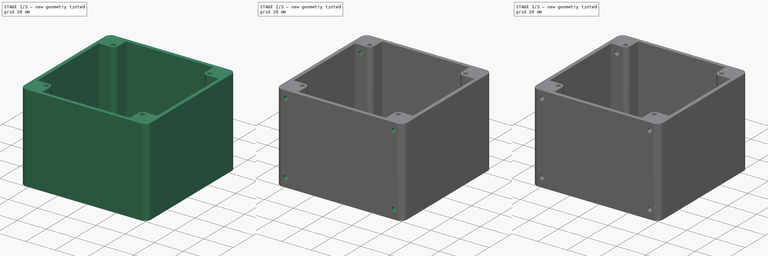
[diagram: build sequence overview — one tinted view per stage of 3, left to right]
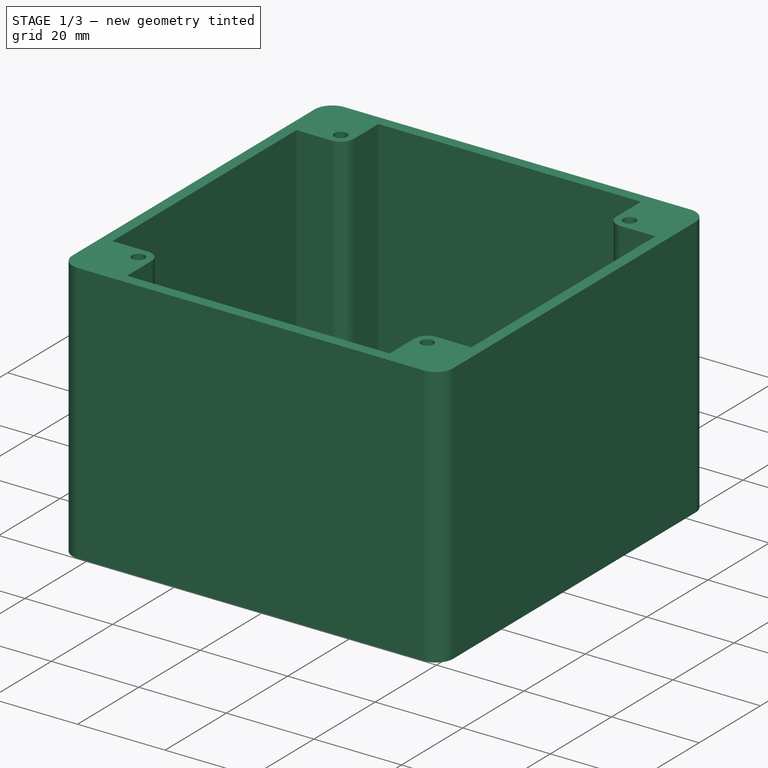
[diagram: stage 1 of 3 — iso view after this stage's code; geometry added in this stage tinted green]
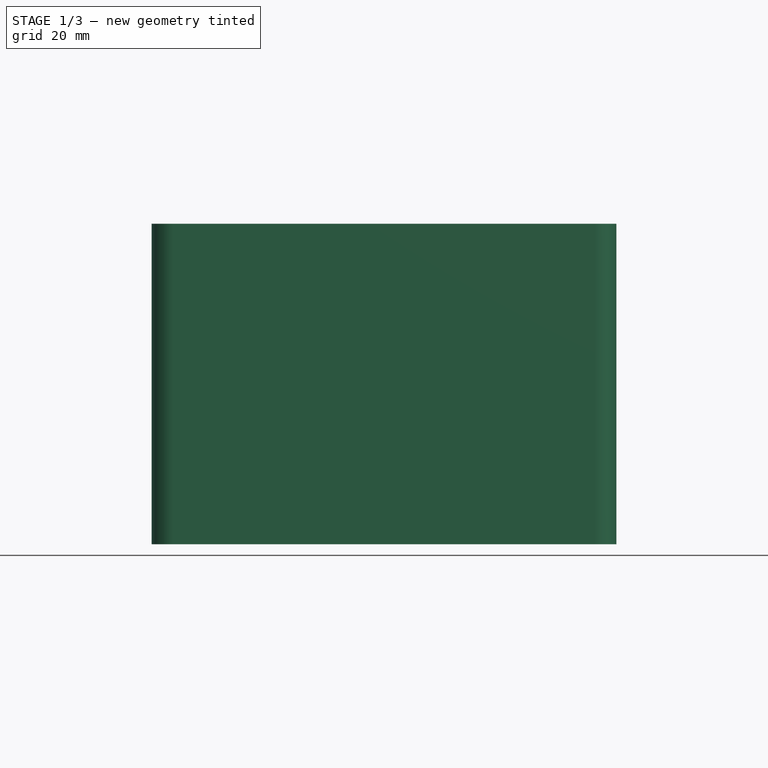
[diagram: stage 1 of 3 — front view after this stage's code; geometry added in this stage tinted green]
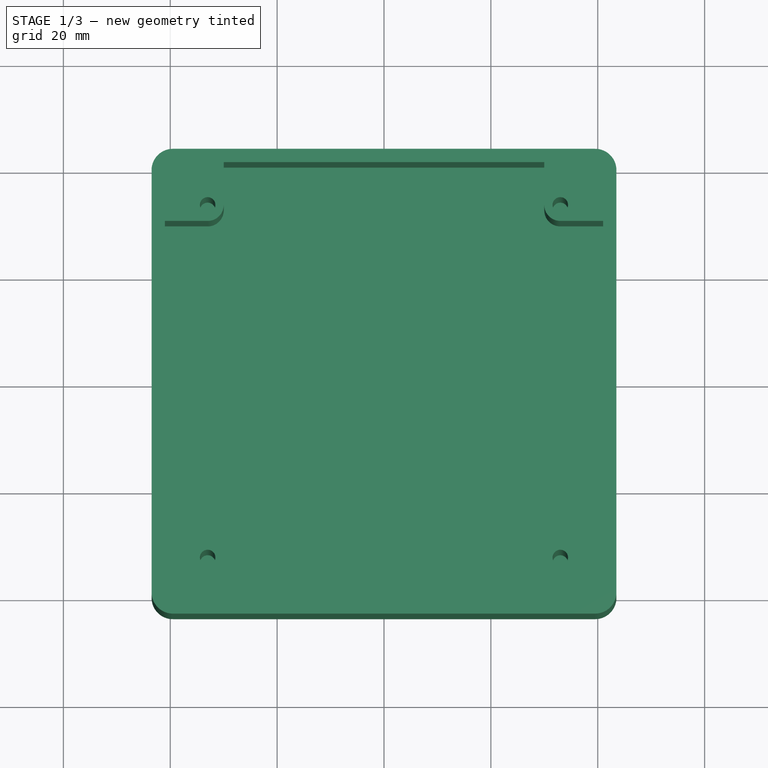
[diagram: stage 1 of 3 — top view after this stage's code; geometry added in this stage tinted green]
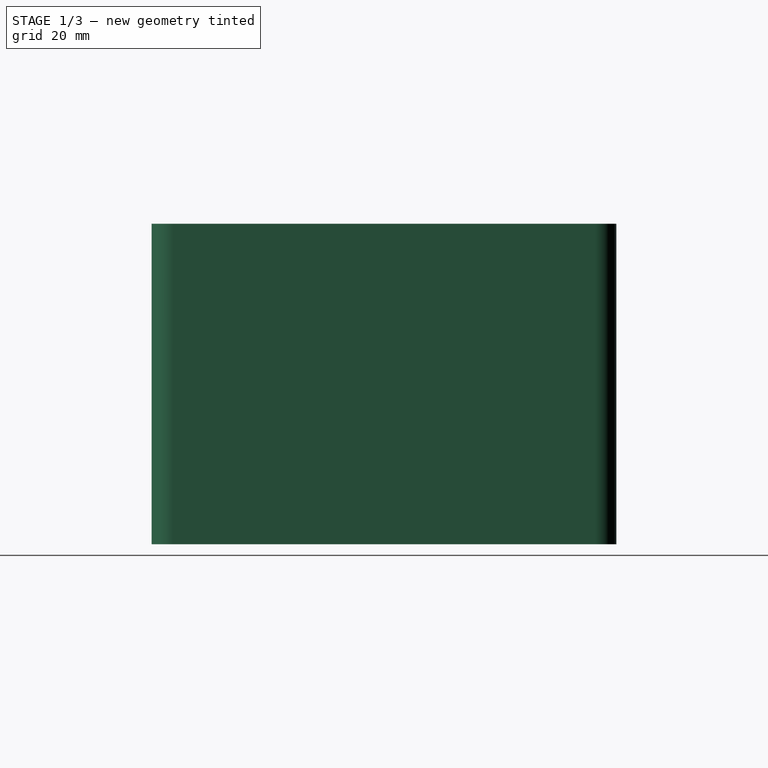
[diagram: stage 1 of 3 — right view after this stage's code; geometry added in this stage tinted green]
FCSTD DOCUMENT  (FreeCAD 0.18R4 (GitTag))
Label: electrical_box_fancontrol
License: All rights reserved
LicenseURL: http://en.wikipedia.org/wiki/All_rights_reserved
objects: Sketcher::SketchObject×4, PartDesign::Pocket×3, PartDesign::Pad×1, PartDesign::PolarPattern×1, PartDesign::Chamfer×1, PartDesign::Body×1
note: 15 computed .brp shape members not serialized (recipe doc carries the construction recipe); baked Part::Feature solids carry a one-line shape summary decoded from their .brp

FEATURE [Sketcher::SketchObject] Sketch
  MapMode = 5
  Support = -> [XY_Plane]
  sketch-geometry (11):
    g0: LineSegment StartX=-39.5 StartY=43.5 StartZ=0 EndX=39.5 EndY=43.5 EndZ=0
    g1: LineSegment StartX=43.5 StartY=39.5 StartZ=0 EndX=43.5 EndY=-39.5 EndZ=0
    g2: LineSegment StartX=39.5 StartY=-43.5 StartZ=0 EndX=-39.5 EndY=-43.5 EndZ=0
    g3: LineSegment StartX=-43.5 StartY=-39.5 StartZ=0 EndX=-43.5 EndY=39.5 EndZ=0
    g4: ArcOfCircle CenterX=-39.5 CenterY=39.5 CenterZ=0 NormalX=0 NormalY=0 NormalZ=1 AngleXU=0 Radius=4 StartAngle=1.5708 EndAngle=3.14159
    g5: ArcOfCircle CenterX=39.5 CenterY=39.5 CenterZ=0 NormalX=0 NormalY=0 NormalZ=1 AngleXU=0 Radius=4 StartAngle=9e-16 EndAngle=1.5708
    g6: ArcOfCircle CenterX=39.5 CenterY=-39.5 CenterZ=0 NormalX=0 NormalY=0 NormalZ=1 AngleXU=0 Radius=4 StartAngle=4.71239 EndAngle=6.28319
    g7: ArcOfCircle CenterX=-39.5 CenterY=-39.5 CenterZ=0 NormalX=0 NormalY=0 NormalZ=1 AngleXU=0 Radius=4 StartAngle=3.14159 EndAngle=4.71239
    g8: LineSegment [constr] StartX=-39.5 StartY=39.5 StartZ=0 EndX=0 EndY=0 EndZ=0
    g9: LineSegment [constr] StartX=0 StartY=0 StartZ=0 EndX=39.5 EndY=39.5 EndZ=0
    g10: LineSegment [constr] StartX=0 StartY=0 StartZ=0 EndX=-39.5 EndY=-39.5 EndZ=0
  constraints (26):
    c: Horizontal(g0)
    c: Horizontal(g2)
    c: Vertical(g1)
    c: Vertical(g3)
    c: Tangent(g3,g4) = 1.5708
    c: Tangent(g0,g4) = 1.5708
    c: Tangent(g0,g5) = 1.5708
    c: Tangent(g1,g5) = 1.5708
    c: Tangent(g1,g6) = 1.5708
    c: Tangent(g2,g6) = 1.5708
    c: Tangent(g2,g7) = 1.5708
    c: Tangent(g3,g7) = 1.5708
    c: Equal(g7,g4)
    c: Equal(g4,g5)
    c: Equal(g5,g6)
    c: Radius(g5) = 4
    c: Equal(g3,g0)
    c: DistanceX(g3,g1) = 87
    c: Coincident(g8,g4)
    c: Coincident(g8,g-1)
    c: Coincident(g8,g9)
    c: Coincident(g9,g5)
    c: Coincident(g-1,g10)
    c: Coincident(g10,g7)
    c: Equal(g10,g8)
    c: Equal(g8,g9)
FEATURE [PartDesign::Pad] Pad
  Length = 60
  Length2 = 100
  Profile = -> Sketch
  Type = 0
FEATURE [Sketcher::SketchObject] Sketch001
  MapMode = 5
  Placement = pos=(0,0,60) rot=(0,0,1;0rad)
  Support = -> [Pad]
  sketch-geometry (25):
    g0: LineSegment [constr] StartX=-33 StartY=33 StartZ=0 EndX=-33 EndY=-33 EndZ=0
    g1: LineSegment [constr] StartX=-33 StartY=-33 StartZ=0 EndX=33 EndY=-33 EndZ=0
    g2: LineSegment [constr] StartX=33 StartY=-33 StartZ=0 EndX=33 EndY=33 EndZ=0
    g3: LineSegment [constr] StartX=33 StartY=33 StartZ=0 EndX=-33 EndY=33 EndZ=0
    g4: Circle [constr] CenterX=0 CenterY=0 CenterZ=0 NormalX=0 NormalY=0 NormalZ=1 AngleXU=0 Radius=46.669
    g5: Circle CenterX=-33 CenterY=33 CenterZ=0 NormalX=0 NormalY=0 NormalZ=1 AngleXU=0 Radius=1.45
    g6: Circle CenterX=33 CenterY=33 CenterZ=0 NormalX=0 NormalY=0 NormalZ=1 AngleXU=0 Radius=1.45
    g7: Circle CenterX=33 CenterY=-33 CenterZ=0 NormalX=0 NormalY=0 NormalZ=1 AngleXU=0 Radius=1.45
    g8: Circle CenterX=-33 CenterY=-33 CenterZ=0 NormalX=0 NormalY=0 NormalZ=1 AngleXU=0 Radius=1.45
    g9: LineSegment StartX=-30 StartY=33 StartZ=0 EndX=-30 EndY=41 EndZ=0
    g10: LineSegment StartX=-30 StartY=41 StartZ=0 EndX=30 EndY=41 EndZ=0
    g11: LineSegment StartX=30 StartY=41 StartZ=0 EndX=30 EndY=33 EndZ=0
    g12: ArcOfCircle CenterX=33 CenterY=33 CenterZ=0 NormalX=0 NormalY=0 NormalZ=1 AngleXU=0 Radius=3 StartAngle=3.14159 EndAngle=4.71239
    g13: LineSegment StartX=33 StartY=30 StartZ=0 EndX=41 EndY=30 EndZ=0
    g14: LineSegment StartX=41 StartY=30 StartZ=0 EndX=41 EndY=-30 EndZ=0
    g15: LineSegment StartX=41 StartY=-30 StartZ=0 EndX=33 EndY=-30 EndZ=0
    g16: LineSegment StartX=30 StartY=-33 StartZ=0 EndX=30 EndY=-41 EndZ=0
    g17: LineSegment StartX=30 StartY=-41 StartZ=0 EndX=-30 EndY=-41 EndZ=0
    g18: LineSegment StartX=-30 StartY=-41 StartZ=0 EndX=-30 EndY=-33 EndZ=0
    g19: LineSegment StartX=-33 StartY=-30 StartZ=0 EndX=-41 EndY=-30 EndZ=0
    g20: LineSegment StartX=-41 StartY=-30 StartZ=0 EndX=-41 EndY=30 EndZ=0
    g21: LineSegment StartX=-41 StartY=30 StartZ=0 EndX=-33 EndY=30 EndZ=0
    g22: ArcOfCircle CenterX=-33 CenterY=33 CenterZ=0 NormalX=0 NormalY=0 NormalZ=1 AngleXU=0 Radius=3 StartAngle=4.71239 EndAngle=6.28319
    g23: ArcOfCircle CenterX=-33 CenterY=-33 CenterZ=0 NormalX=0 NormalY=0 NormalZ=1 AngleXU=0 Radius=3 StartAngle=1.1e-15 EndAngle=1.5708
    g24: ArcOfCircle CenterX=33 CenterY=-33 CenterZ=0 NormalX=0 NormalY=0 NormalZ=1 AngleXU=0 Radius=3 StartAngle=1.5708 EndAngle=3.14159
  constraints (69):
    c: Coincident(g0,g1)
    c: Coincident(g1,g2)
    c: Coincident(g2,g3)
    c: Coincident(g3,g0)
    c: Equal(g0,g1)
    c: Equal(g0,g2)
    c: Equal(g0,g3)
    c: PointOnObject(g0,g4)
    c: PointOnObject(g1,g4)
    c: PointOnObject(g2,g4)
    c: PointOnObject(g3,g4)
    c: Coincident(g4,g-1)
    c: Horizontal(g3)
    c: DistanceX(g3,g3) = 66
    c: Coincident(g5,g0)
    c: Coincident(g6,g2)
    c: Coincident(g7,g1)
    c: Coincident(g8,g0)
    c: Equal(g5,g8)
    c: Equal(g8,g6)
    c: Equal(g6,g7)
    c: Diameter(g6) = 2.9
    c: PointOnObject(g9,g3)
    c: Vertical(g9)
    c: Coincident(g9,g10)
    c: Horizontal(g10)
    c: Coincident(g10,g11)
    c: PointOnObject(g11,g3)
    c: Vertical(g11)
    c: Tangent(g12,g11) = -1.5708
    c: PointOnObject(g12,g2)
    c: Tangent(g12,g13) = -1.5708
    c: Horizontal(g13)
    c: Coincident(g13,g14)
    c: Vertical(g14)
    c: Coincident(g14,g15)
    c: PointOnObject(g15,g2)
    c: Horizontal(g15)
    c: PointOnObject(g16,g1)
    c: Vertical(g16)
    c: Coincident(g16,g17)
    c: Horizontal(g17)
    c: Coincident(g17,g18)
    c: PointOnObject(g18,g1)
    c: Vertical(g18)
    c: PointOnObject(g19,g0)
    c: Horizontal(g19)
    c: Coincident(g19,g20)
    c: Vertical(g20)
    c: Coincident(g20,g21)
    c: PointOnObject(g21,g0)
    c: Horizontal(g21)
    c: Coincident(g22,g5)
    c: Coincident(g22,g21)
    c: Coincident(g22,g9)
    c: Coincident(g23,g8)
    c: Coincident(g23,g19)
    c: Coincident(g23,g18)
    c: Coincident(g24,g7)
    c: Coincident(g24,g16)
    c: Coincident(g24,g15)
    c: Equal(g22,g12)
    c: Equal(g12,g24)
    c: Equal(g24,g23)
    c: Equal(g9,g21)
    c: Equal(g21,g15)
    c: Equal(g15,g16)
    c: DistanceY(g9,g9) = 8
    c: DistanceX(g10,g10) = 60
FEATURE [PartDesign::Pocket] Pocket
  BaseFeature = -> Pad
  Length = 59
  Length2 = 100
  Profile = -> Sketch001
  Type = 0
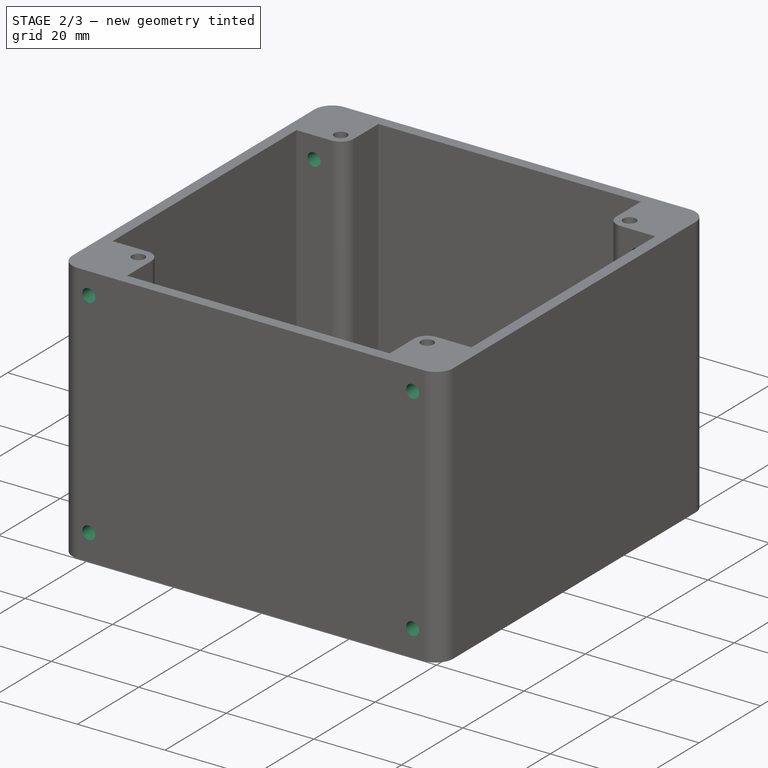
[diagram: stage 2 of 3 — iso view after this stage's code; geometry added in this stage tinted green]
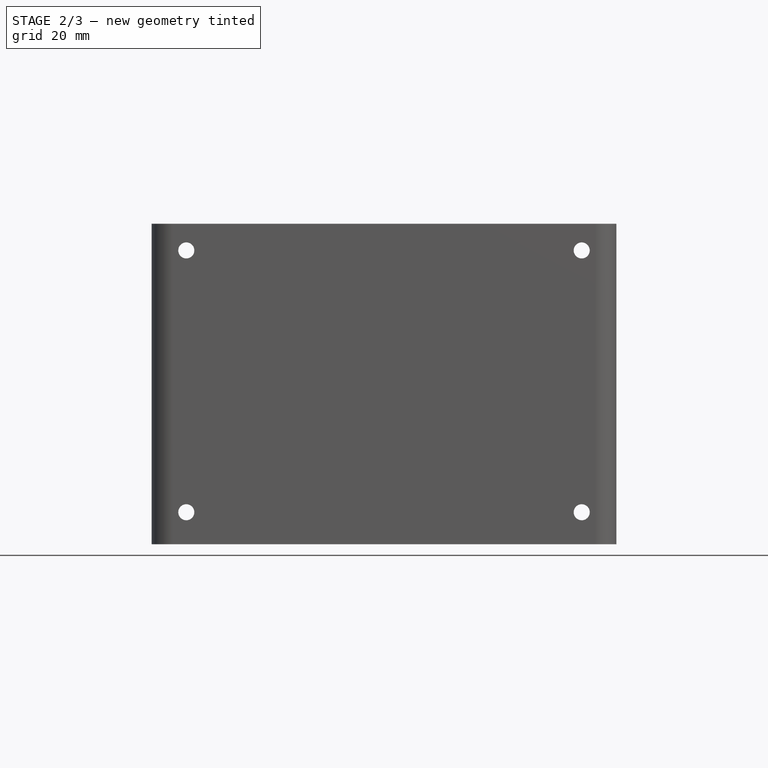
[diagram: stage 2 of 3 — front view after this stage's code; geometry added in this stage tinted green]
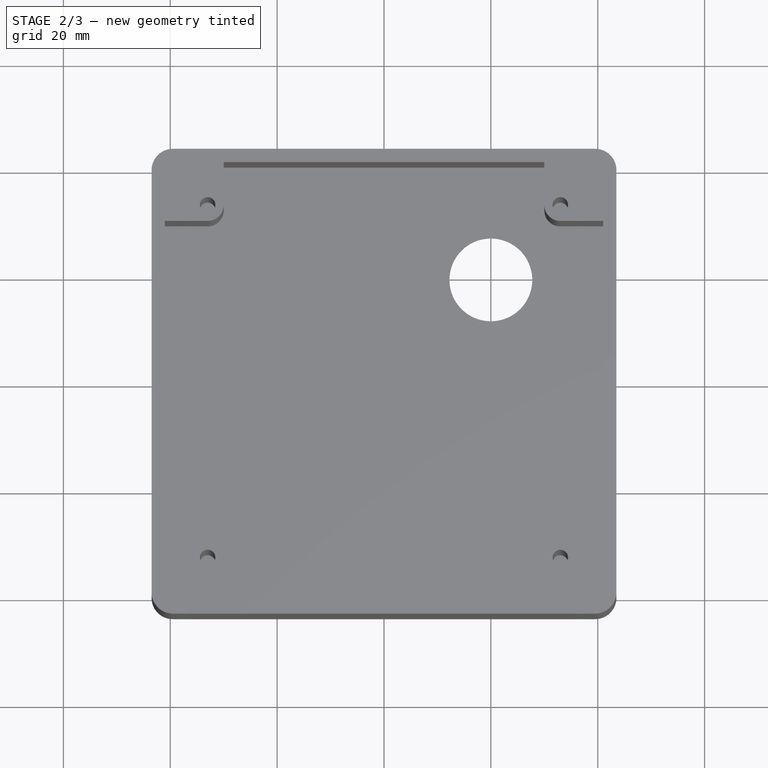
[diagram: stage 2 of 3 — top view after this stage's code; geometry added in this stage tinted green]
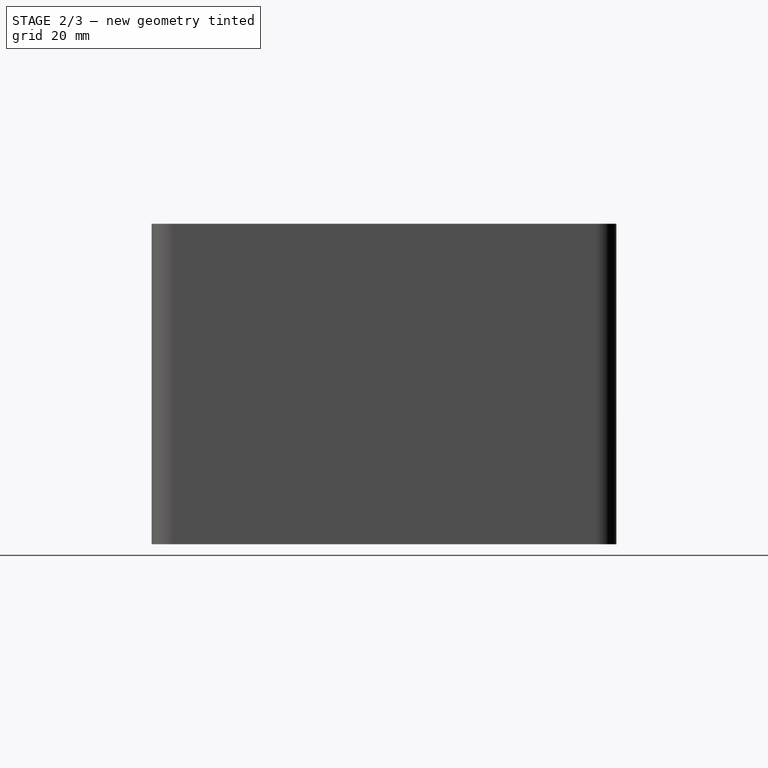
[diagram: stage 2 of 3 — right view after this stage's code; geometry added in this stage tinted green]
FEATURE [Sketcher::SketchObject] Sketch002
  MapMode = 5
  Placement = pos=(0,30,0) rot=(1,0,0;1.5708rad)
  Support = -> [Pocket]
  sketch-geometry (8):
    g0: LineSegment [constr] StartX=-37 StartY=55 StartZ=0 EndX=0 EndY=55 EndZ=0
    g1: LineSegment [constr] StartX=0 StartY=55 StartZ=0 EndX=37 EndY=55 EndZ=0
    g2: Circle CenterX=-37 CenterY=55 CenterZ=0 NormalX=0 NormalY=0 NormalZ=1 AngleXU=0 Radius=1.5
    g3: Circle CenterX=37 CenterY=55 CenterZ=0 NormalX=0 NormalY=0 NormalZ=1 AngleXU=0 Radius=1.5
    g4: LineSegment [constr] StartX=-37 StartY=55 StartZ=0 EndX=-37 EndY=6 EndZ=0
    g5: LineSegment [constr] StartX=37 StartY=55 StartZ=0 EndX=37 EndY=6 EndZ=0
    g6: Circle CenterX=-37 CenterY=6 CenterZ=0 NormalX=0 NormalY=0 NormalZ=1 AngleXU=0 Radius=1.5
    g7: Circle CenterX=37 CenterY=6 CenterZ=0 NormalX=0 NormalY=0 NormalZ=1 AngleXU=0 Radius=1.5
  constraints (21):
    c: Horizontal(g0)
    c: Coincident(g0,g1)
    c: Horizontal(g1)
    c: Equal(g1,g0)
    c: PointOnObject(g0,g-2)
    c: Coincident(g2,g0)
    c: Coincident(g3,g1)
    c: Equal(g2,g3)
    c: Diameter(g2) = 3
    c: DistanceX(g2,g0) = 37
    c: DistanceY(g-1,g0) = 55
    c: Coincident(g4,g2)
    c: Vertical(g4)
    c: Coincident(g5,g3)
    c: Vertical(g5)
    c: Equal(g5,g4)
    c: Coincident(g6,g4)
    c: Coincident(g7,g5)
    c: Equal(g7,g6)
    c: Equal(g6,g3)
    c: DistanceY(g5,g5) = 49
FEATURE [PartDesign::Pocket] Pocket001
  BaseFeature = -> Pocket
  Length = 5
  Length2 = 100
  Midplane = true
  Profile = -> Sketch002
  Type = 1
FEATURE [Sketcher::SketchObject] Sketch003
  MapMode = 5
  Support = -> [XY_Plane]
  sketch-geometry (3):
    g0: Circle CenterX=20 CenterY=20 CenterZ=0 NormalX=0 NormalY=0 NormalZ=1 AngleXU=0 Radius=7.75
    g1: LineSegment [constr] StartX=20 StartY=20 StartZ=0 EndX=0 EndY=20 EndZ=0
    g2: LineSegment [constr] StartX=20 StartY=20 StartZ=0 EndX=20 EndY=0 EndZ=0
  constraints (11):
    c: Diameter(g0) = 15.5
    c: Coincident(g1,g0)
    c: Horizontal(g1)
    c: Coincident(g1,g2)
    c: PointOnObject(g2,g-1)
    c: Vertical(g2)
    c: Equal(g2,g1)
    c: Equal(g2,g1)
    c: PointOnObject(g1,g-2)
    c: Equal(g1,g2)
    c: DistanceX(g1,g1) = 20
FEATURE [PartDesign::Pocket] Pocket002
  BaseFeature = -> Pocket001
  Length = 5
  Length2 = 100
  Profile = -> Sketch003
  Refine = true
  Reversed = true
  Type = 1
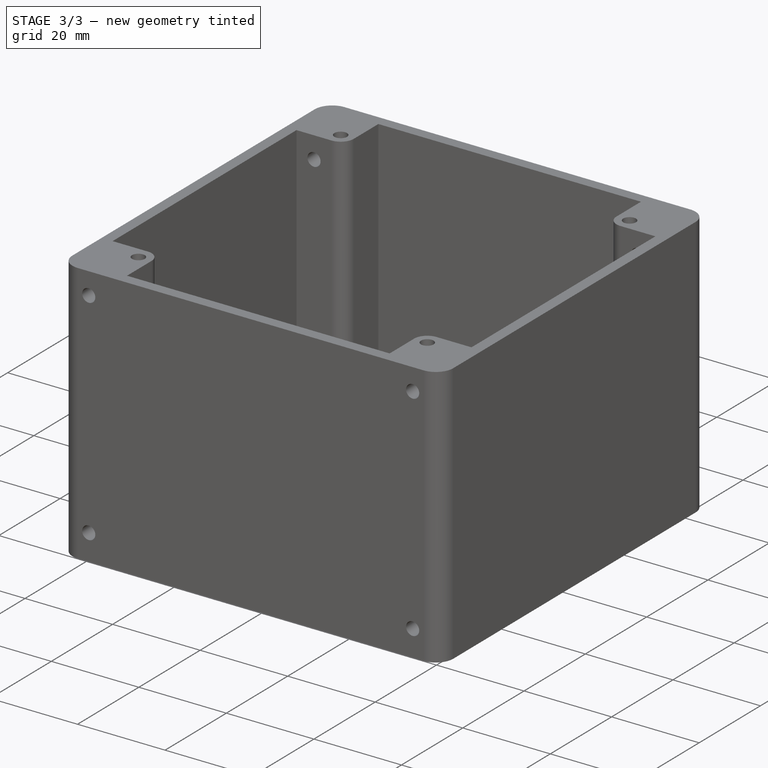
[diagram: stage 3 of 3 — iso view after this stage's code; geometry added in this stage tinted green]
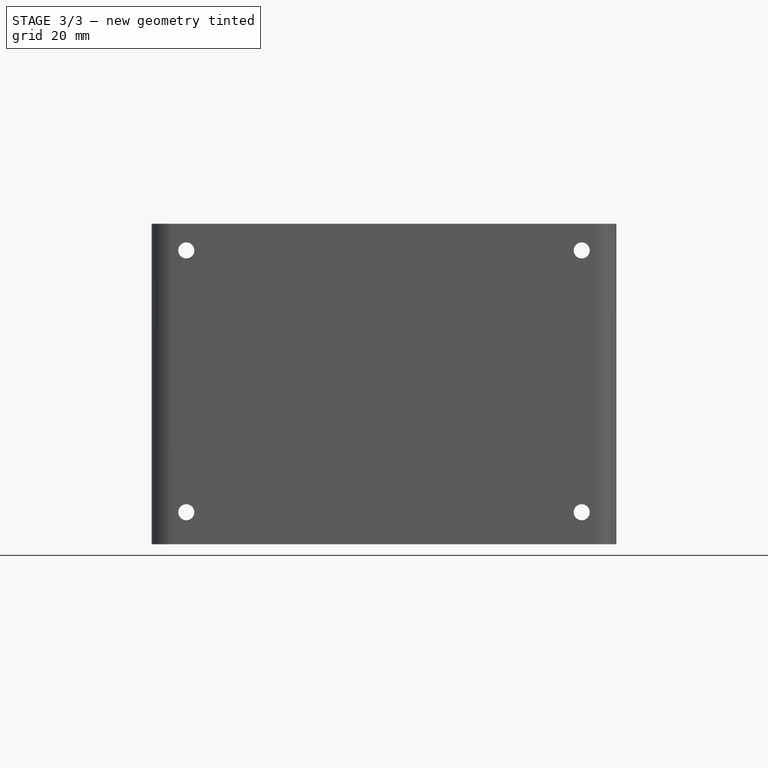
[diagram: stage 3 of 3 — front view after this stage's code; geometry added in this stage tinted green]
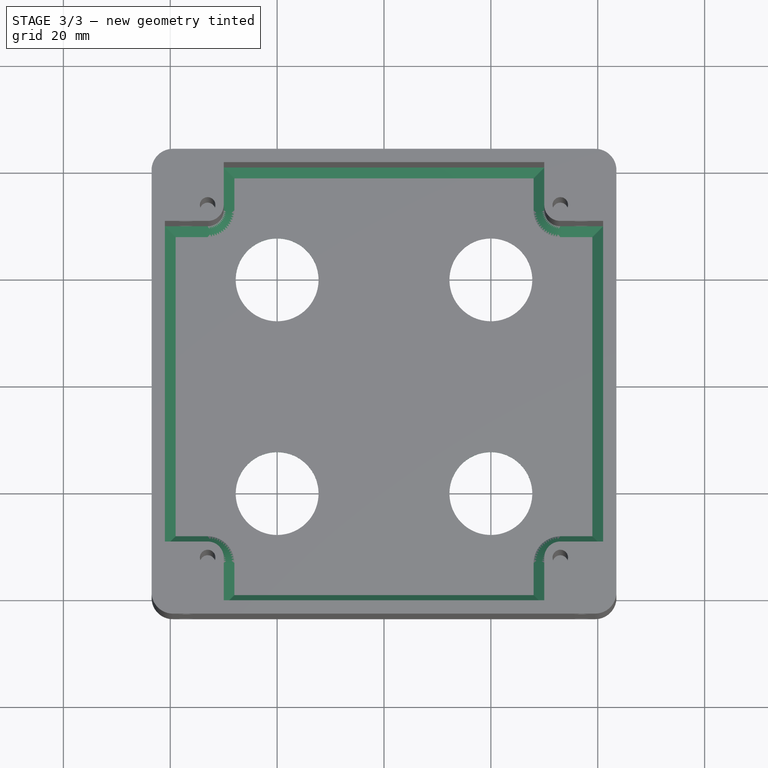
[diagram: stage 3 of 3 — top view after this stage's code; geometry added in this stage tinted green]
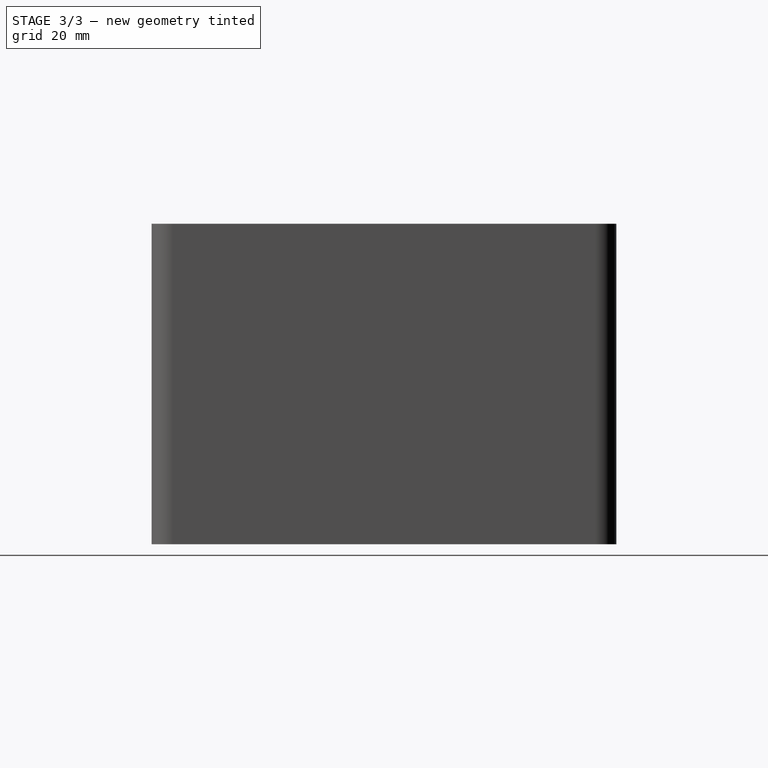
[diagram: stage 3 of 3 — right view after this stage's code; geometry added in this stage tinted green]
FEATURE [PartDesign::PolarPattern] PolarPattern
  Angle = 360
  Axis = -> Z_Axis
  BaseFeature = -> Pocket002
  Occurrences = 4
  Originals = -> [Pocket002]
FEATURE [PartDesign::Chamfer] Chamfer
  Base = -> PolarPattern [Edge102,Edge71,Edge73,Edge101,Edge93,Edge91,Edge81,Edge82]
  BaseFeature = -> PolarPattern
  Size = 2
FEATURE [PartDesign::Body] Body
  Group = -> [Sketch,Pad,Sketch001,Pocket,Sketch002,Pocket001,Sketch003,Pocket002,PolarPattern,Chamfer]
  Origin = -> Origin
  Tip = -> Chamfer
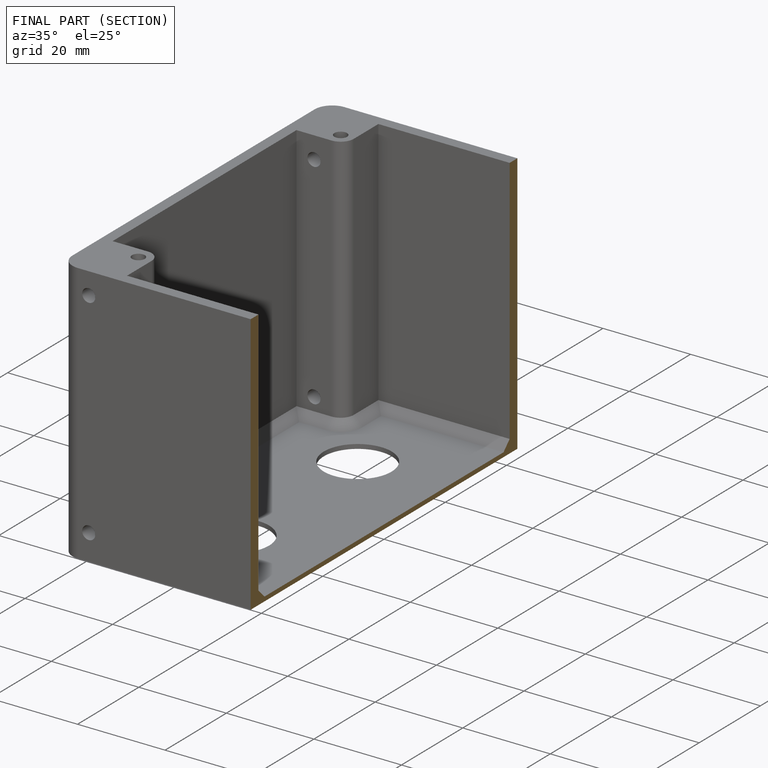
[diagram: finished part — half-section view (interior)]
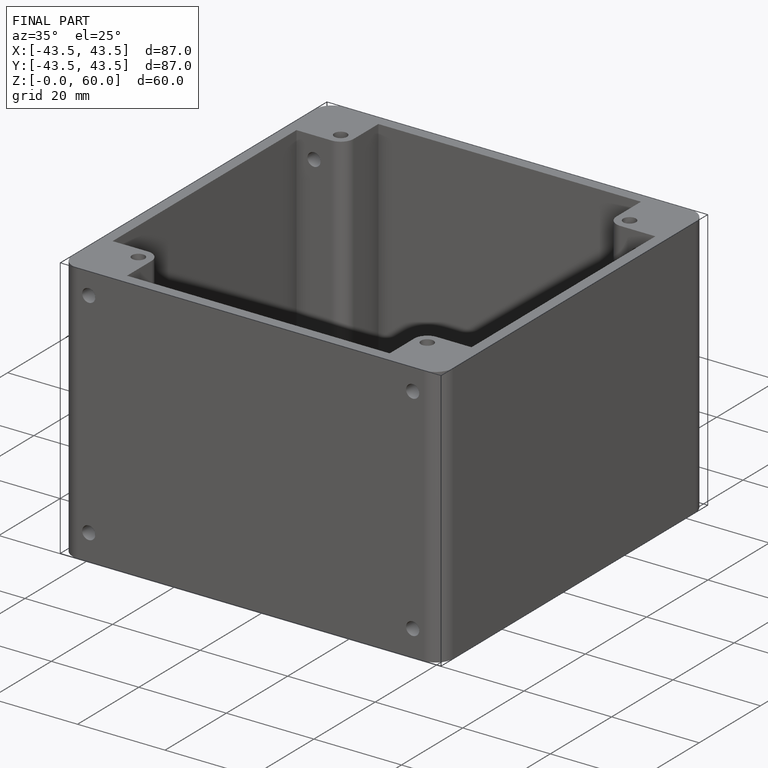
[diagram: finished part — iso view with bounding-box wireframe]
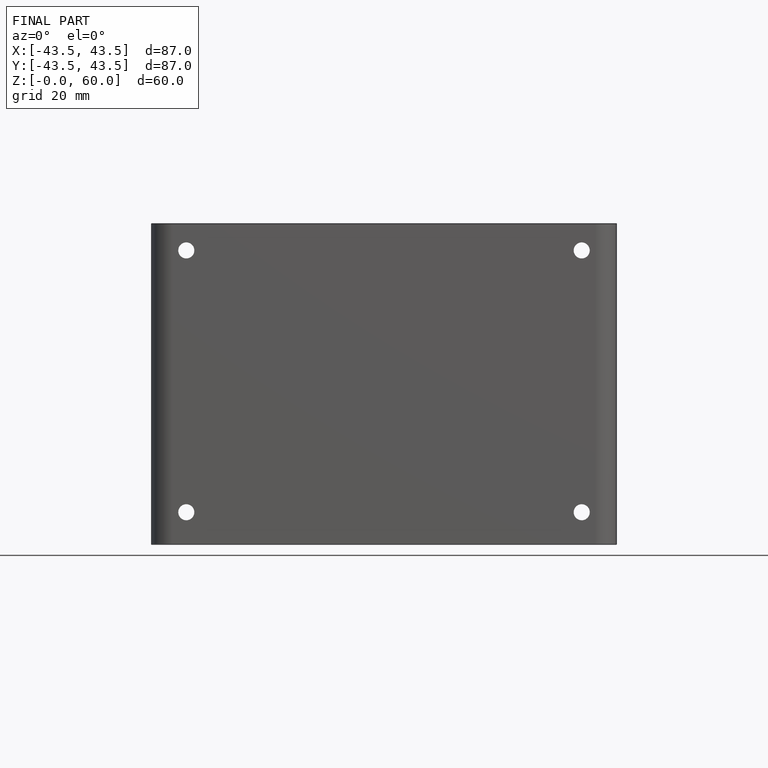
[diagram: finished part — front view with bounding-box wireframe]
